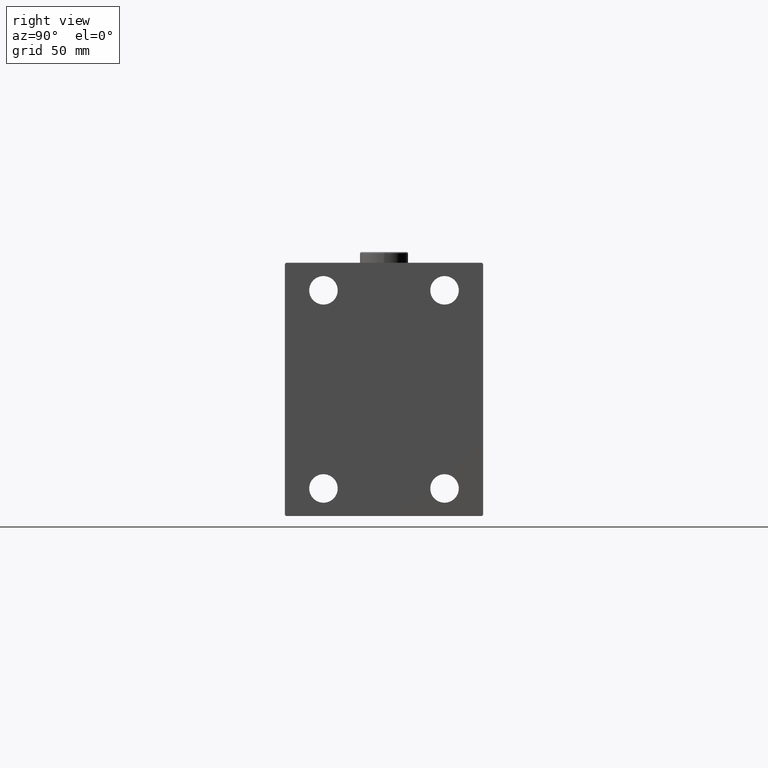
[diagram: clean part render]
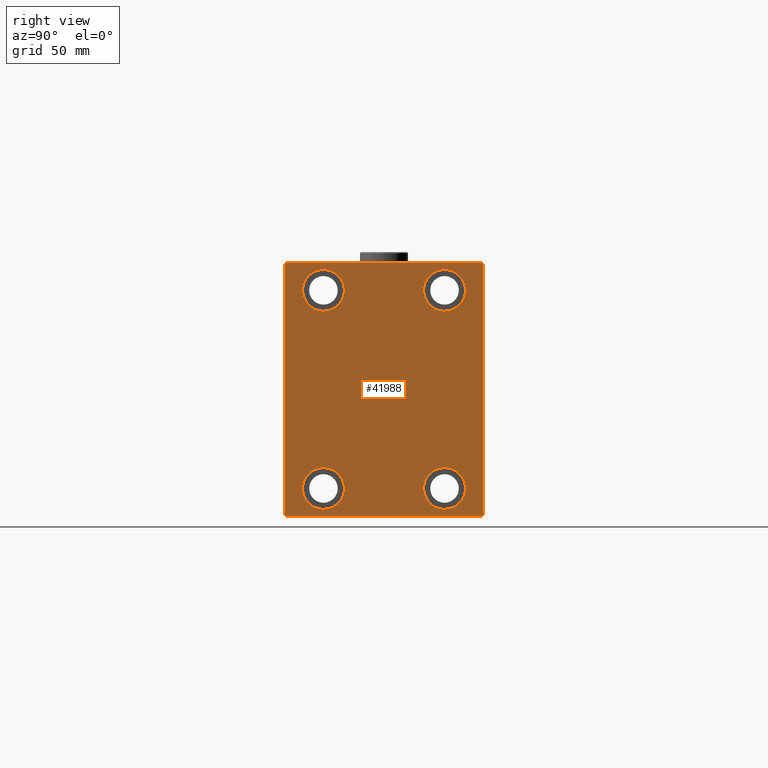
[diagram: same view with one face highlighted and labeled with its STEP entity id]
A machine part, right view. The second image highlights one B-rep face of the part: STEP entity #41988.
In plain terms, the highlighted planar face has unit normal (1, 0, 0).
Its self-contained STEP definition (entity closure, byte-faithful):
#116 = DIRECTION ( 'NONE',  ( -1.000000000000000000, -0.000000000000000000, -0.000000000000000000 ) ) ;
#1233 = CARTESIAN_POINT ( 'NONE',  ( 238.0000000000000000, -45.00000000000000000, 56.99999999999999289 ) ) ;
#1892 = DIRECTION ( 'NONE',  ( -1.000000000000000000, -0.000000000000000000, -0.000000000000000000 ) ) ;
#2158 = VERTEX_POINT ( 'NONE', #35697 ) ;
#2506 = EDGE_LOOP ( 'NONE', ( #28433, #43678 ) ) ;
#3082 = CARTESIAN_POINT ( 'NONE',  ( 238.0000000000000000, 45.00000000000001421, -57.50000000000000711 ) ) ;
#3104 = VECTOR ( 'NONE', #45099, 1000.000000000000000 ) ;
#3303 = CARTESIAN_POINT ( 'NONE',  ( 238.0000000000000000, -27.49999999999998934, 45.00000000000000711 ) ) ;
#4620 = FACE_BOUND ( 'NONE', #2506, .T. ) ;
#5334 = DIRECTION ( 'NONE',  ( 0.000000000000000000, 0.000000000000000000, -1.000000000000000000 ) ) ;
#5860 = CARTESIAN_POINT ( 'NONE',  ( 238.0000000000000000, 51.00000000000002842, 51.00000000000002842 ) ) ;
#5886 = DIRECTION ( 'NONE',  ( 0.000000000000000000, -1.000000000000000000, -1.541976423090495387E-16 ) ) ;
#5887 = EDGE_LOOP ( 'NONE', ( #13611, #10843 ) ) ;
#6674 = DIRECTION ( 'NONE',  ( 0.000000000000000000, 0.000000000000000000, 1.000000000000000000 ) ) ;
#6698 = DIRECTION ( 'NONE',  ( -1.000000000000000000, -0.000000000000000000, -0.000000000000000000 ) ) ;
#6758 = DIRECTION ( 'NONE',  ( 0.000000000000000000, 0.000000000000000000, 1.000000000000000000 ) ) ;
#7655 = ORIENTED_EDGE ( 'NONE', *, *, #23063, .T. ) ;
#8538 = CARTESIAN_POINT ( 'NONE',  ( 238.0000000000000000, 27.49999999999998934, -54.49999999999998579 ) ) ;
#8637 = VERTEX_POINT ( 'NONE', #8538 ) ;
#9007 = VERTEX_POINT ( 'NONE', #21251 ) ;
#9204 = ORIENTED_EDGE ( 'NONE', *, *, #15199, .T. ) ;
#9272 = LINE ( 'NONE', #22815, #31077 ) ;
#9273 = DIRECTION ( 'NONE',  ( 0.000000000000000000, 0.000000000000000000, 1.000000000000000000 ) ) ;
#9790 = EDGE_CURVE ( 'NONE', #18878, #45752, #45248, .T. ) ;
#9864 = AXIS2_PLACEMENT_3D ( 'NONE', #32656, #116, #29793 ) ;
#9956 = AXIS2_PLACEMENT_3D ( 'NONE', #10104, #17921, #6758 ) ;
#9964 = VECTOR ( 'NONE', #24463, 1000.000000000000000 ) ;
#10038 = EDGE_CURVE ( 'NONE', #12327, #2158, #46019, .T. ) ;
#10068 = ORIENTED_EDGE ( 'NONE', *, *, #24814, .T. ) ;
#10104 = CARTESIAN_POINT ( 'NONE',  ( 238.0000000000000000, 27.49999999999998934, -44.99999999999998579 ) ) ;
#10843 = ORIENTED_EDGE ( 'NONE', *, *, #10038, .T. ) ;
#11116 = AXIS2_PLACEMENT_3D ( 'NONE', #46361, #13338, #6674 ) ;
#11590 = LINE ( 'NONE', #14205, #16604 ) ;
#12327 = VERTEX_POINT ( 'NONE', #38484 ) ;
#12347 = CARTESIAN_POINT ( 'NONE',  ( 238.0000000000000000, -27.49999999999998934, 54.50000000000000711 ) ) ;
#13149 = FACE_BOUND ( 'NONE', #19395, .T. ) ;
#13338 = DIRECTION ( 'NONE',  ( -1.000000000000000000, -0.000000000000000000, -0.000000000000000000 ) ) ;
#13546 = CARTESIAN_POINT ( 'NONE',  ( 238.0000000000000000, -27.50000000000000000, -54.49999999999998579 ) ) ;
#13611 = ORIENTED_EDGE ( 'NONE', *, *, #19312, .T. ) ;
#14160 = VERTEX_POINT ( 'NONE', #46706 ) ;
#14205 = CARTESIAN_POINT ( 'NONE',  ( 238.0000000000000000, -51.00000000000002842, -51.00000000000002842 ) ) ;
#14297 = DIRECTION ( 'NONE',  ( 0.000000000000000000, 0.000000000000000000, 1.000000000000000000 ) ) ;
#14884 = EDGE_CURVE ( 'NONE', #28477, #30437, #11590, .T. ) ;
#15199 = EDGE_CURVE ( 'NONE', #26237, #9007, #17484, .T. ) ;
#15711 = ORIENTED_EDGE ( 'NONE', *, *, #23268, .T. ) ;
#15799 = CIRCLE ( 'NONE', #24122, 9.500000000000001776 ) ;
#16124 = CARTESIAN_POINT ( 'NONE',  ( 238.0000000000000000, 44.50000000000004263, -57.50000000000000711 ) ) ;
#16241 = DIRECTION ( 'NONE',  ( 1.000000000000000000, 0.000000000000000000, 0.000000000000000000 ) ) ;
#16533 = AXIS2_PLACEMENT_3D ( 'NONE', #29105, #32198, #18191 ) ;
#16604 = VECTOR ( 'NONE', #28689, 1000.000000000000114 ) ;
#17274 = CIRCLE ( 'NONE', #16533, 9.500000000000001776 ) ;
#17484 = LINE ( 'NONE', #5860, #18106 ) ;
#17693 = ORIENTED_EDGE ( 'NONE', *, *, #33448, .T. ) ;
#17921 = DIRECTION ( 'NONE',  ( -1.000000000000000000, -0.000000000000000000, -0.000000000000000000 ) ) ;
#18106 = VECTOR ( 'NONE', #20119, 1000.000000000000114 ) ;
#18191 = DIRECTION ( 'NONE',  ( 0.000000000000000000, 0.000000000000000000, 1.000000000000000000 ) ) ;
#18352 = EDGE_CURVE ( 'NONE', #41830, #14160, #9272, .T. ) ;
#18774 = ORIENTED_EDGE ( 'NONE', *, *, #22513, .T. ) ;
#18878 = VERTEX_POINT ( 'NONE', #13546 ) ;
#19126 = LINE ( 'NONE', #45020, #28595 ) ;
#19312 = EDGE_CURVE ( 'NONE', #2158, #12327, #30340, .T. ) ;
#19395 = EDGE_LOOP ( 'NONE', ( #25457, #17693 ) ) ;
#19399 = DIRECTION ( 'NONE',  ( -1.000000000000000000, -0.000000000000000000, -0.000000000000000000 ) ) ;
#19638 = VERTEX_POINT ( 'NONE', #23092 ) ;
#19826 = CARTESIAN_POINT ( 'NONE',  ( 238.0000000000000000, -27.50000000000000000, -35.49999999999998579 ) ) ;
#20119 = DIRECTION ( 'NONE',  ( -0.000000000000000000, -0.7071067811865474617, 0.7071067811865474617 ) ) ;
#20152 = ORIENTED_EDGE ( 'NONE', *, *, #32621, .T. ) ;
#20266 = CARTESIAN_POINT ( 'NONE',  ( 238.0000000000000000, 0.000000000000000000, 0.000000000000000000 ) ) ;
#21251 = CARTESIAN_POINT ( 'NONE',  ( 238.0000000000000000, 44.50000000000005684, 57.50000000000000711 ) ) ;
#22513 = EDGE_CURVE ( 'NONE', #46205, #31490, #42858, .T. ) ;
#22736 = EDGE_CURVE ( 'NONE', #19638, #31039, #44871, .T. ) ;
#22815 = CARTESIAN_POINT ( 'NONE',  ( 238.0000000000000000, 51.00000000000003553, -51.00000000000003553 ) ) ;
#23016 = LINE ( 'NONE', #30604, #26579 ) ;
#23063 = EDGE_CURVE ( 'NONE', #14160, #26237, #39889, .T. ) ;
#23092 = CARTESIAN_POINT ( 'NONE',  ( 238.0000000000000000, -27.49999999999998934, 35.50000000000000711 ) ) ;
#23268 = EDGE_CURVE ( 'NONE', #9007, #46205, #23016, .T. ) ;
#23603 = PLANE ( 'NONE',  #29719 ) ;
#24122 = AXIS2_PLACEMENT_3D ( 'NONE', #3303, #24207, #42496 ) ;
#24207 = DIRECTION ( 'NONE',  ( -1.000000000000000000, -0.000000000000000000, -0.000000000000000000 ) ) ;
#24295 = CARTESIAN_POINT ( 'NONE',  ( 238.0000000000000000, -44.50000000000005684, -57.50000000000000711 ) ) ;
#24463 = DIRECTION ( 'NONE',  ( 0.000000000000000000, -1.206764157201257045E-16, 1.000000000000000000 ) ) ;
#24814 = EDGE_CURVE ( 'NONE', #30437, #41830, #30357, .T. ) ;
#25283 = DIRECTION ( 'NONE',  ( 0.000000000000000000, -0.7071067811865672237, -0.7071067811865279218 ) ) ;
#25457 = ORIENTED_EDGE ( 'NONE', *, *, #22736, .T. ) ;
#26049 = DIRECTION ( 'NONE',  ( 0.000000000000000000, 0.000000000000000000, 1.000000000000000000 ) ) ;
#26237 = VERTEX_POINT ( 'NONE', #32588 ) ;
#26579 = VECTOR ( 'NONE', #5886, 1000.000000000000000 ) ;
#26848 = DIRECTION ( 'NONE',  ( -0.000000000000000000, 0.7071067811865474617, 0.7071067811865474617 ) ) ;
#26987 = CARTESIAN_POINT ( 'NONE',  ( 238.0000000000000000, 27.49999999999998934, -44.99999999999998579 ) ) ;
#27315 = AXIS2_PLACEMENT_3D ( 'NONE', #32582, #6698, #14297 ) ;
#28020 = ORIENTED_EDGE ( 'NONE', *, *, #9790, .T. ) ;
#28433 = ORIENTED_EDGE ( 'NONE', *, *, #37269, .T. ) ;
#28477 = VERTEX_POINT ( 'NONE', #38806 ) ;
#28595 = VECTOR ( 'NONE', #5334, 1000.000000000000000 ) ;
#28689 = DIRECTION ( 'NONE',  ( -0.000000000000000000, 0.7071067811865474617, -0.7071067811865474617 ) ) ;
#28832 = CARTESIAN_POINT ( 'NONE',  ( 238.0000000000000000, -50.99999999999874944, 51.00000000000158451 ) ) ;
#29105 = CARTESIAN_POINT ( 'NONE',  ( 238.0000000000000000, -27.50000000000000000, -44.99999999999998579 ) ) ;
#29719 = AXIS2_PLACEMENT_3D ( 'NONE', #20266, #16241, #34284 ) ;
#29793 = DIRECTION ( 'NONE',  ( 0.000000000000000000, 0.000000000000000000, 1.000000000000000000 ) ) ;
#30340 = CIRCLE ( 'NONE', #9864, 9.500000000000001776 ) ;
#30357 = LINE ( 'NONE', #30595, #3104 ) ;
#30437 = VERTEX_POINT ( 'NONE', #24295 ) ;
#30595 = CARTESIAN_POINT ( 'NONE',  ( 238.0000000000000000, -45.00000000000000000, -57.50000000000000711 ) ) ;
#30604 = CARTESIAN_POINT ( 'NONE',  ( 238.0000000000000000, 45.00000000000000000, 57.50000000000000711 ) ) ;
#30722 = FACE_OUTER_BOUND ( 'NONE', #39840, .T. ) ;
#31039 = VERTEX_POINT ( 'NONE', #12347 ) ;
#31077 = VECTOR ( 'NONE', #26848, 1000.000000000000114 ) ;
#31173 = EDGE_CURVE ( 'NONE', #31490, #28477, #19126, .T. ) ;
#31490 = VERTEX_POINT ( 'NONE', #1233 ) ;
#32198 = DIRECTION ( 'NONE',  ( -1.000000000000000000, -0.000000000000000000, -0.000000000000000000 ) ) ;
#32582 = CARTESIAN_POINT ( 'NONE',  ( 238.0000000000000000, -27.49999999999998934, 45.00000000000000711 ) ) ;
#32588 = CARTESIAN_POINT ( 'NONE',  ( 238.0000000000000000, 45.00000000000000000, 57.00000000000003553 ) ) ;
#32621 = EDGE_CURVE ( 'NONE', #45752, #18878, #17274, .T. ) ;
#32656 = CARTESIAN_POINT ( 'NONE',  ( 238.0000000000000000, 27.50000000000001066, 45.00000000000000711 ) ) ;
#33020 = ORIENTED_EDGE ( 'NONE', *, *, #18352, .T. ) ;
#33344 = AXIS2_PLACEMENT_3D ( 'NONE', #26987, #19399, #26049 ) ;
#33448 = EDGE_CURVE ( 'NONE', #31039, #19638, #15799, .T. ) ;
#34284 = DIRECTION ( 'NONE',  ( 0.000000000000000000, 0.000000000000000000, -1.000000000000000000 ) ) ;
#34424 = CARTESIAN_POINT ( 'NONE',  ( 238.0000000000000000, 27.50000000000001066, 45.00000000000000711 ) ) ;
#35697 = CARTESIAN_POINT ( 'NONE',  ( 238.0000000000000000, 27.50000000000001066, 35.50000000000000711 ) ) ;
#37269 = EDGE_CURVE ( 'NONE', #8637, #46385, #47034, .T. ) ;
#37519 = CARTESIAN_POINT ( 'NONE',  ( 238.0000000000000000, 27.49999999999998934, -35.49999999999998579 ) ) ;
#37665 = AXIS2_PLACEMENT_3D ( 'NONE', #34424, #1892, #9273 ) ;
#38484 = CARTESIAN_POINT ( 'NONE',  ( 238.0000000000000000, 27.50000000000001066, 54.50000000000000711 ) ) ;
#38806 = CARTESIAN_POINT ( 'NONE',  ( 238.0000000000000000, -45.00000000000000000, -57.00000000000006395 ) ) ;
#39840 = EDGE_LOOP ( 'NONE', ( #15711, #18774, #42406, #44294, #10068, #33020, #7655, #9204 ) ) ;
#39889 = LINE ( 'NONE', #3082, #9964 ) ;
#40452 = CARTESIAN_POINT ( 'NONE',  ( 238.0000000000000000, -44.49999999999994316, 57.49999999999999289 ) ) ;
#40807 = EDGE_CURVE ( 'NONE', #46385, #8637, #43322, .T. ) ;
#41658 = FACE_BOUND ( 'NONE', #41916, .T. ) ;
#41734 = VECTOR ( 'NONE', #25283, 1000.000000000000000 ) ;
#41830 = VERTEX_POINT ( 'NONE', #16124 ) ;
#41916 = EDGE_LOOP ( 'NONE', ( #28020, #20152 ) ) ;
#41988 = ADVANCED_FACE ( 'NONE', ( #4620, #13149, #42116, #41658, #30722 ), #23603, .T. ) ;
#42116 = FACE_BOUND ( 'NONE', #5887, .T. ) ;
#42406 = ORIENTED_EDGE ( 'NONE', *, *, #31173, .T. ) ;
#42496 = DIRECTION ( 'NONE',  ( 0.000000000000000000, 0.000000000000000000, 1.000000000000000000 ) ) ;
#42858 = LINE ( 'NONE', #28832, #41734 ) ;
#43322 = CIRCLE ( 'NONE', #9956, 9.500000000000001776 ) ;
#43678 = ORIENTED_EDGE ( 'NONE', *, *, #40807, .T. ) ;
#44294 = ORIENTED_EDGE ( 'NONE', *, *, #14884, .T. ) ;
#44871 = CIRCLE ( 'NONE', #27315, 9.500000000000001776 ) ;
#45020 = CARTESIAN_POINT ( 'NONE',  ( 238.0000000000000000, -45.00000000000000000, 57.49999999999999289 ) ) ;
#45099 = DIRECTION ( 'NONE',  ( 0.000000000000000000, 1.000000000000000000, 0.000000000000000000 ) ) ;
#45248 = CIRCLE ( 'NONE', #11116, 9.500000000000001776 ) ;
#45752 = VERTEX_POINT ( 'NONE', #19826 ) ;
#46019 = CIRCLE ( 'NONE', #37665, 9.500000000000001776 ) ;
#46205 = VERTEX_POINT ( 'NONE', #40452 ) ;
#46361 = CARTESIAN_POINT ( 'NONE',  ( 238.0000000000000000, -27.50000000000000000, -44.99999999999998579 ) ) ;
#46385 = VERTEX_POINT ( 'NONE', #37519 ) ;
#46706 = CARTESIAN_POINT ( 'NONE',  ( 238.0000000000000000, 45.00000000000001421, -57.00000000000006395 ) ) ;
#47034 = CIRCLE ( 'NONE', #33344, 9.500000000000001776 ) ;